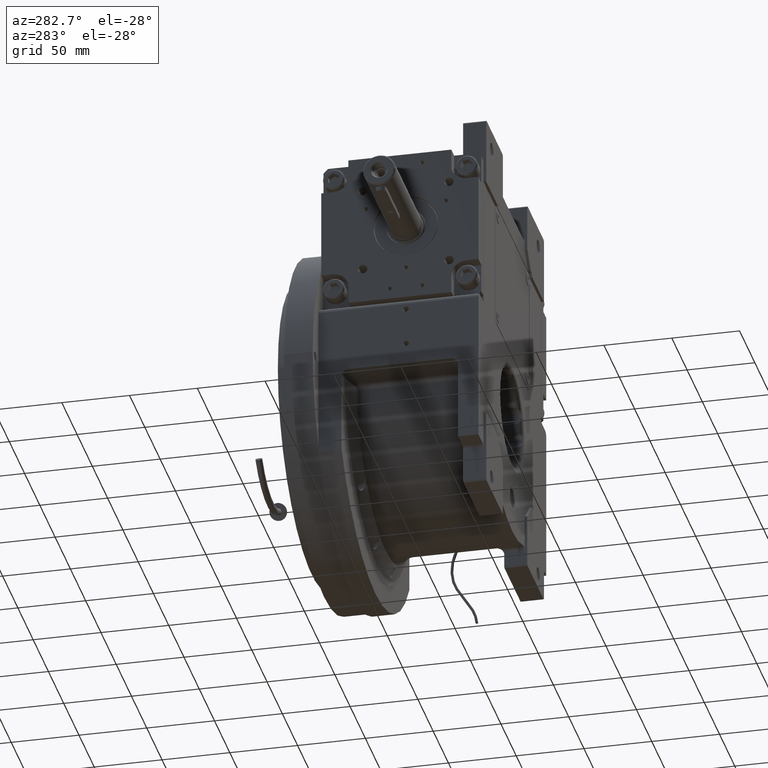
[diagram: clean part render]
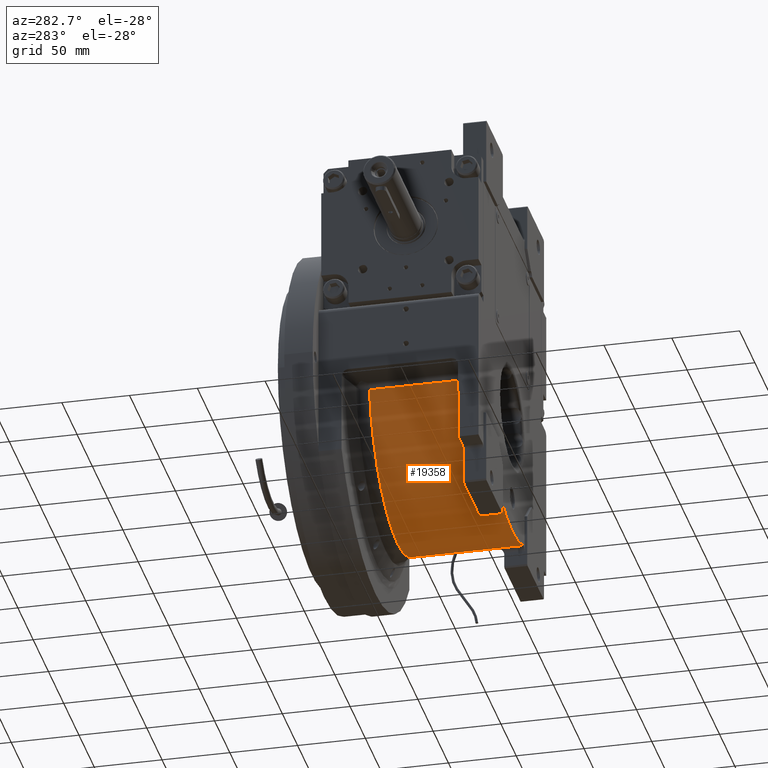
[diagram: same view with one face highlighted and labeled with its STEP entity id]
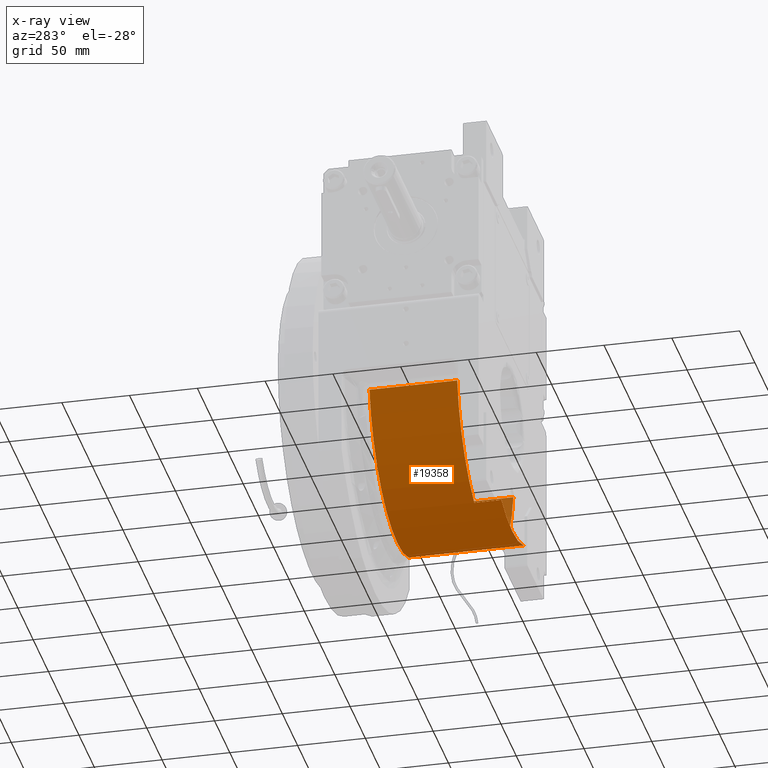
[diagram: x-ray of the same camera — body ghosted, the highlighted face saturated]
A machine part, auxiliary view. The second image highlights one B-rep face of the part: STEP entity #19358.
The next image is the same camera in x-ray: the body ghosted, the highlighted face saturated — about 1% of this face is hidden behind the body in this view.
In plain terms, the highlighted cylindrical surface (partial cylindrical patch) has radius 93 mm, axis along (0, 1, 0).
Its self-contained STEP definition (entity closure, byte-faithful):
#975 = CARTESIAN_POINT ( 'NONE',  ( -35.84375000000000000, -53.50000000000000000, -85.81506619433150718 ) ) ;
#2998 = VECTOR ( 'NONE', #67533, 1000.000000000000000 ) ;
#5945 = ORIENTED_EDGE ( 'NONE', *, *, #58919, .T. ) ;
#6294 = EDGE_CURVE ( 'NONE', #68106, #36896, #22299, .T. ) ;
#6802 = CARTESIAN_POINT ( 'NONE',  ( 1.421085471520200056E-14, 31.21878281274215183, 0.000000000000000000 ) ) ;
#7588 = VERTEX_POINT ( 'NONE', #62126 ) ;
#9419 = DIRECTION ( 'NONE',  ( 0.000000000000000000, 1.000000000000000000, 0.000000000000000000 ) ) ;
#10489 = CARTESIAN_POINT ( 'NONE',  ( 35.84375000000000000, -33.50000000000000000, -85.81506619433150718 ) ) ;
#11754 = CARTESIAN_POINT ( 'NONE',  ( -91.75016228508779648, -33.50000000000000000, -15.19564808292360070 ) ) ;
#13205 = CARTESIAN_POINT ( 'NONE',  ( -91.75016228501930016, -33.50000000000000000, -15.19564808333695183 ) ) ;
#14324 = CARTESIAN_POINT ( 'NONE',  ( 1.421085471520200056E-14, -53.50000000000000000, -4.263256414560599853E-14 ) ) ;
#15063 = CARTESIAN_POINT ( 'NONE',  ( 35.84375000000000000, -33.50000000000000000, -85.81506619433150718 ) ) ;
#15714 = ORIENTED_EDGE ( 'NONE', *, *, #6294, .T. ) ;
#15869 = CIRCLE ( 'NONE', #25639, 93.00000000000001421 ) ;
#18140 = VERTEX_POINT ( 'NONE', #10489 ) ;
#18600 = LINE ( 'NONE', #13205, #72199 ) ;
#19199 = CARTESIAN_POINT ( 'NONE',  ( -35.84375000000000000, -53.50000000000000000, -85.81506619433150718 ) ) ;
#19358 = ADVANCED_FACE ( 'NONE', ( #26224 ), #32326, .T. ) ;
#19431 = CIRCLE ( 'NONE', #71967, 93.00000000000001421 ) ;
#21930 = EDGE_CURVE ( 'NONE', #68106, #7588, #53084, .T. ) ;
#22006 = EDGE_LOOP ( 'NONE', ( #69193, #5945, #68233, #36362, #39298, #15714, #48866, #71043 ) ) ;
#22018 = DIRECTION ( 'NONE',  ( 0.000000000000000000, 1.000000000000000000, 0.000000000000000000 ) ) ;
#22299 = LINE ( 'NONE', #50241, #57248 ) ;
#22549 = EDGE_CURVE ( 'NONE', #18140, #43363, #49523, .T. ) ;
#25037 = LINE ( 'NONE', #975, #33831 ) ;
#25639 = AXIS2_PLACEMENT_3D ( 'NONE', #35927, #60045, #37041 ) ;
#26224 = FACE_OUTER_BOUND ( 'NONE', #22006, .T. ) ;
#27254 = DIRECTION ( 'NONE',  ( 0.000000000000000000, -1.000000000000000000, 0.000000000000000000 ) ) ;
#28854 = EDGE_CURVE ( 'NONE', #36896, #18140, #19431, .T. ) ;
#32129 = AXIS2_PLACEMENT_3D ( 'NONE', #61820, #22018, #49579 ) ;
#32326 = CYLINDRICAL_SURFACE ( 'NONE', #32129, 93.00000000000000000 ) ;
#32357 = DIRECTION ( 'NONE',  ( 0.9865608847878558629, 0.000000000000000000, -0.1633940653959109757 ) ) ;
#32405 = CARTESIAN_POINT ( 'NONE',  ( 35.84375000000000000, -53.50000000000000000, -85.81506619433150718 ) ) ;
#33599 = VERTEX_POINT ( 'NONE', #55066 ) ;
#33831 = VECTOR ( 'NONE', #71008, 1000.000000000000000 ) ;
#35927 = CARTESIAN_POINT ( 'NONE',  ( -5.684341886080798963E-14, -33.50000000000000000, -4.973799150320699408E-14 ) ) ;
#36362 = ORIENTED_EDGE ( 'NONE', *, *, #62722, .T. ) ;
#36896 = VERTEX_POINT ( 'NONE', #45416 ) ;
#37041 = DIRECTION ( 'NONE',  ( -0.3854166666666659080, 0.000000000000000000, -0.9227426472508768462 ) ) ;
#39298 = ORIENTED_EDGE ( 'NONE', *, *, #21930, .F. ) ;
#40480 = DIRECTION ( 'NONE',  ( 5.743225055535190204E-15, 1.000000000000000000, 2.439003765979129920E-14 ) ) ;
#40838 = AXIS2_PLACEMENT_3D ( 'NONE', #6802, #40480, #53494 ) ;
#43363 = VERTEX_POINT ( 'NONE', #32405 ) ;
#45416 = CARTESIAN_POINT ( 'NONE',  ( 91.75016228514499517, -33.50000000000000000, -15.19564808257825028 ) ) ;
#48866 = ORIENTED_EDGE ( 'NONE', *, *, #28854, .T. ) ;
#49523 = LINE ( 'NONE', #15063, #2998 ) ;
#49547 = DIRECTION ( 'NONE',  ( -0.3854166666666672403, 0.000000000000000000, -0.9227426472508764022 ) ) ;
#49579 = DIRECTION ( 'NONE',  ( 0.000000000000000000, 0.000000000000000000, 1.000000000000000000 ) ) ;
#50241 = CARTESIAN_POINT ( 'NONE',  ( 91.75016228501930016, 31.21878281274199907, -15.19564808333685058 ) ) ;
#50322 = VERTEX_POINT ( 'NONE', #19199 ) ;
#50776 = EDGE_CURVE ( 'NONE', #33599, #52266, #15869, .T. ) ;
#52266 = VERTEX_POINT ( 'NONE', #11754 ) ;
#52311 = CIRCLE ( 'NONE', #55970, 92.99999999999995737 ) ;
#53084 = CIRCLE ( 'NONE', #40838, 93.00000000000001421 ) ;
#53494 = DIRECTION ( 'NONE',  ( 0.9865608847851539132, -1.678764654171103455E-15, -0.1633940654122239822 ) ) ;
#53805 = DIRECTION ( 'NONE',  ( 0.000000000000000000, 1.000000000000000000, 0.000000000000000000 ) ) ;
#55066 = CARTESIAN_POINT ( 'NONE',  ( -35.84375000000000000, -33.50000000000000000, -85.81506619433150718 ) ) ;
#55970 = AXIS2_PLACEMENT_3D ( 'NONE', #14324, #66797, #49547 ) ;
#57248 = VECTOR ( 'NONE', #27254, 1000.000000000000000 ) ;
#58919 = EDGE_CURVE ( 'NONE', #50322, #33599, #25037, .T. ) ;
#60045 = DIRECTION ( 'NONE',  ( 0.000000000000000000, 1.000000000000000000, 0.000000000000000000 ) ) ;
#61466 = CARTESIAN_POINT ( 'NONE',  ( 1.421085471520200056E-14, -33.50000000000000000, 1.421085471520200056E-14 ) ) ;
#61820 = CARTESIAN_POINT ( 'NONE',  ( -4.517455316885850268E-28, -53.50000000000000000, 0.000000000000000000 ) ) ;
#62126 = CARTESIAN_POINT ( 'NONE',  ( -91.75030103113060420, 31.21878279875124917, -15.19503959111690072 ) ) ;
#62722 = EDGE_CURVE ( 'NONE', #52266, #7588, #18600, .T. ) ;
#66797 = DIRECTION ( 'NONE',  ( 0.000000000000000000, -1.000000000000000000, 0.000000000000000000 ) ) ;
#67533 = DIRECTION ( 'NONE',  ( 0.000000000000000000, -1.000000000000000000, 0.000000000000000000 ) ) ;
#68106 = VERTEX_POINT ( 'NONE', #70010 ) ;
#68233 = ORIENTED_EDGE ( 'NONE', *, *, #50776, .T. ) ;
#69193 = ORIENTED_EDGE ( 'NONE', *, *, #74717, .F. ) ;
#70010 = CARTESIAN_POINT ( 'NONE',  ( 91.75016228501930016, 31.21878281274259948, -15.19564808333685058 ) ) ;
#71008 = DIRECTION ( 'NONE',  ( 1.776356839400250070E-15, 1.000000000000000000, -7.105427357601000281E-16 ) ) ;
#71043 = ORIENTED_EDGE ( 'NONE', *, *, #22549, .T. ) ;
#71967 = AXIS2_PLACEMENT_3D ( 'NONE', #61466, #9419, #32357 ) ;
#72199 = VECTOR ( 'NONE', #53805, 1000.000000000000000 ) ;
#74717 = EDGE_CURVE ( 'NONE', #50322, #43363, #52311, .T. ) ;